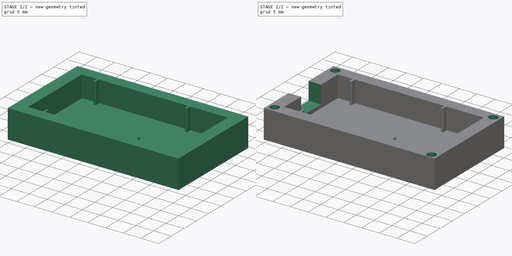
[diagram: build sequence overview — one tinted view per stage of 2, left to right]
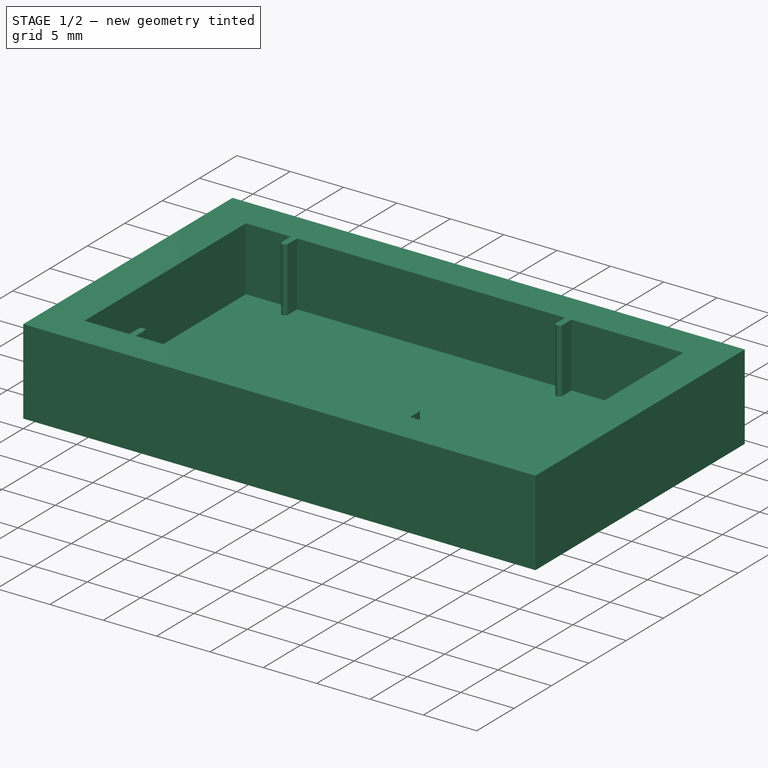
[diagram: stage 1 of 2 — iso view after this stage's code; geometry added in this stage tinted green]
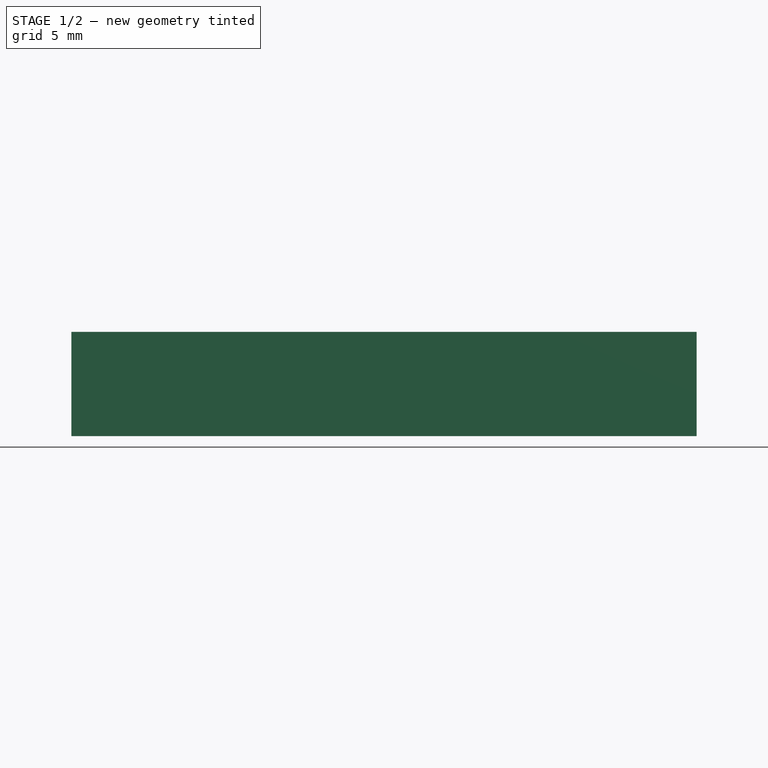
[diagram: stage 1 of 2 — front view after this stage's code; geometry added in this stage tinted green]
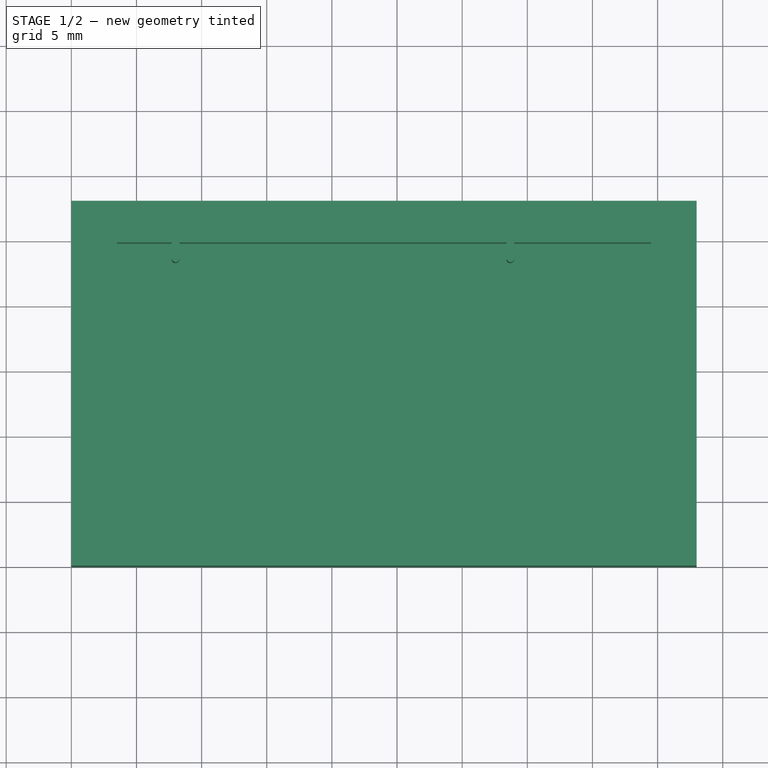
[diagram: stage 1 of 2 — top view after this stage's code; geometry added in this stage tinted green]
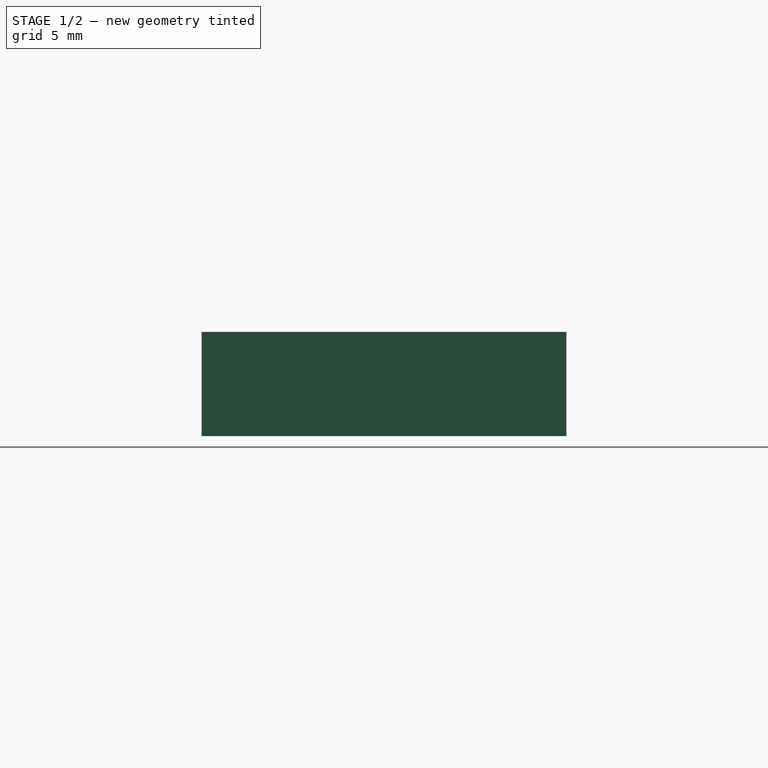
[diagram: stage 1 of 2 — right view after this stage's code; geometry added in this stage tinted green]
FCSTD DOCUMENT  (FreeCAD 0.16R6109 (Git))
Label: 2nd
License: All rights reserved
LicenseURL: http://en.wikipedia.org/wiki/All_rights_reserved
objects: Sketcher::SketchObject×5, PartDesign::Pocket×3, PartDesign::Pad×1
note: 13 computed .brp shape members not serialized (recipe doc carries the construction recipe); baked Part::Feature solids carry a one-line shape summary decoded from their .brp

FEATURE [Sketcher::SketchObject] Sketch
  sketch-geometry (4):
    g0: LineSegment StartX=0 StartY=0 StartZ=0 EndX=48 EndY=0 EndZ=0
    g1: LineSegment StartX=48 StartY=0 StartZ=0 EndX=48 EndY=28 EndZ=0
    g2: LineSegment StartX=48 StartY=28 StartZ=0 EndX=0 EndY=28 EndZ=0
    g3: LineSegment StartX=0 StartY=28 StartZ=0 EndX=0 EndY=0 EndZ=0
  constraints (11):
    c: Coincident(g0,g1)
    c: Coincident(g1,g2)
    c: Coincident(g2,g3)
    c: Coincident(g3,g0)
    c: Horizontal(g0)
    c: Horizontal(g2)
    c: Vertical(g1)
    c: Vertical(g3)
    c: DistanceX(g0) = 48
    c: Coincident(g0,g-1)
    c: DistanceY(g3) = -28
FEATURE [PartDesign::Pad] Pad
  Length = 8
  Length2 = 100
  Sketch = -> Sketch
  Type = 0
FEATURE [Sketcher::SketchObject] Sketch001
  Placement = pos=(0,0,8) rot=(0,0,1;0rad)
  Support = -> Pad [Face6]
  sketch-geometry (20):
    g0: LineSegment StartX=3.5 StartY=3.2 StartZ=0 EndX=7.7 EndY=3.2 EndZ=0
    g1: LineSegment StartX=7.7 StartY=3.2 StartZ=0 EndX=7.7 EndY=4.4 EndZ=0
    g2: ArcOfCircle CenterX=8 CenterY=4.4 CenterZ=0 NormalX=0 NormalY=0 NormalZ=1 Radius=0.3 StartAngle=0 EndAngle=3.14159
    g3: LineSegment StartX=8.3 StartY=4.4 StartZ=0 EndX=8.3 EndY=3.2 EndZ=0
    g4: LineSegment StartX=8.3 StartY=3.2 StartZ=0 EndX=33.4 EndY=3.2 EndZ=0
    g5: LineSegment StartX=33.4 StartY=3.2 StartZ=0 EndX=33.4 EndY=4.4 EndZ=0
    g6: ArcOfCircle CenterX=33.7 CenterY=4.4 CenterZ=0 NormalX=0 NormalY=0 NormalZ=1 Radius=0.3 StartAngle=0 EndAngle=3.14159
    g7: LineSegment StartX=34 StartY=4.4 StartZ=0 EndX=34 EndY=3.2 EndZ=0
    g8: LineSegment StartX=34 StartY=3.2 StartZ=0 EndX=44.5 EndY=3.2 EndZ=0
    g9: LineSegment StartX=44.5 StartY=3.2 StartZ=0 EndX=44.5 EndY=24.8 EndZ=0
    g10: LineSegment StartX=44.5 StartY=24.8 StartZ=0 EndX=34 EndY=24.8 EndZ=0
    g11: LineSegment StartX=34 StartY=24.8 StartZ=0 EndX=34 EndY=23.6 EndZ=0
    g12: ArcOfCircle CenterX=33.7 CenterY=23.6 CenterZ=0 NormalX=0 NormalY=0 NormalZ=1 Radius=0.3 StartAngle=3.14159 EndAngle=6.28319
    g13: LineSegment StartX=33.4 StartY=23.6 StartZ=0 EndX=33.4 EndY=24.8 EndZ=0
    g14: LineSegment StartX=33.4 StartY=24.8 StartZ=0 EndX=8.3 EndY=24.8 EndZ=0
    g15: LineSegment StartX=8.3 StartY=24.8 StartZ=0 EndX=8.3 EndY=23.6 EndZ=0
    g16: ArcOfCircle CenterX=8 CenterY=23.6 CenterZ=0 NormalX=0 NormalY=0 NormalZ=1 Radius=0.3 StartAngle=3.14159 EndAngle=6.28319
    g17: LineSegment StartX=7.7 StartY=23.6 StartZ=0 EndX=7.7 EndY=24.8 EndZ=0
    g18: LineSegment StartX=7.7 StartY=24.8 StartZ=0 EndX=3.5 EndY=24.8 EndZ=0
    g19: LineSegment StartX=3.5 StartY=24.8 StartZ=0 EndX=3.5 EndY=3.2 EndZ=0
  constraints (59):
    c: Horizontal(g0)
    c: Coincident(g0,g1)
    c: Vertical(g1)
    c: Tangent(g1,g2) = 1.5708
    c: Coincident(g2,g3)
    c: Vertical(g3)
    c: Coincident(g3,g4)
    c: Horizontal(g4)
    c: Coincident(g4,g5)
    c: Vertical(g5)
    c: Tangent(g5,g6) = 1.5708
    c: Coincident(g6,g7)
    c: Coincident(g7,g8)
    c: Horizontal(g8)
    c: Coincident(g8,g9)
    c: Vertical(g9)
    c: Coincident(g9,g10)
    c: Horizontal(g10)
    c: Coincident(g10,g11)
    c: Tangent(g11,g12) = 1.5708
    c: Tangent(g12,g13) = 1.5708
    c: Coincident(g13,g14)
    c: Horizontal(g14)
    c: Coincident(g14,g15)
    c: Vertical(g15)
    c: Tangent(g15,g16) = 1.5708
    c: Coincident(g16,g17)
    c: Coincident(g17,g18)
    c: Horizontal(g18)
    c: Coincident(g18,g19)
    c: Coincident(g19,g0)
    c: Vertical(g19)
    c: DistanceY(g1,g2) = 0
    c: DistanceY(g0,g3) = 0
    c: DistanceY(g4,g7) = 0
    c: DistanceY(g5,g6) = 0
    c: Radius(g2) = 0.3
    c: DistanceX(g2,g0) = -4.5
    c: DistanceY(g3) = -1.2
    c: Vertical(g17)
    c: Vertical(g13)
    c: Vertical(g11)
    c: Vertical(g7)
    c: DistanceX(g1,g16) = 0
    c: DistanceX(g2,g15) = 0
    c: DistanceY(g4,g5) = 1.2
    c: Radius(g6) = 0.3
    c: Radius(g12) = 0.3
    c: DistanceY(g11) = -1.2
    c: DistanceY(g18,g9) = 0
    c: DistanceY(g15,g16) = 0
    c: DistanceY(g17,g14) = 0
    c: DistanceX(g18,g9) = 41
    c: DistanceY(g9) = 21.6
    c: DistanceX(g12,g6) = 0
    c: DistanceY(g15) = -1.2
    c: DistanceX(g-1,g0) = 3.5
    c: DistanceY(g-1,g0) = 3.2
    c: DistanceX(g2,g5) = 25.1
FEATURE [PartDesign::Pocket] Pocket
  Length = 6
  Sketch = -> Sketch001
  Type = 0
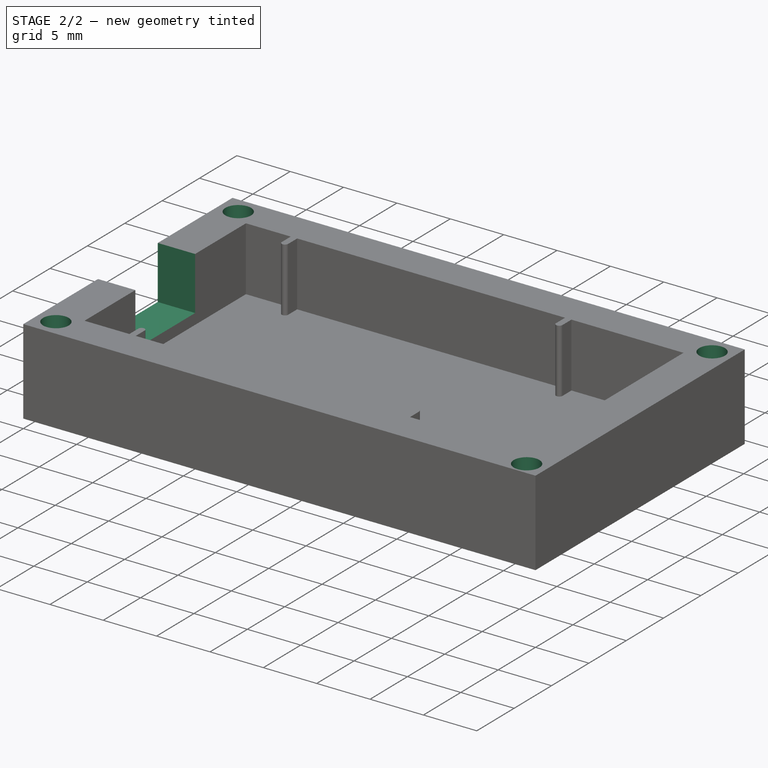
[diagram: stage 2 of 2 — iso view after this stage's code; geometry added in this stage tinted green]
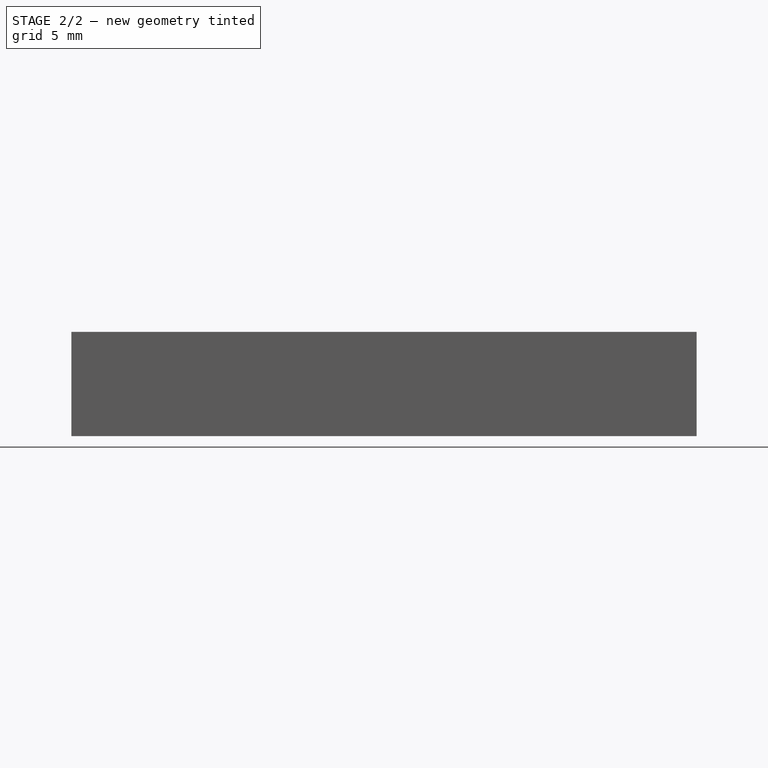
[diagram: stage 2 of 2 — front view after this stage's code; geometry added in this stage tinted green]
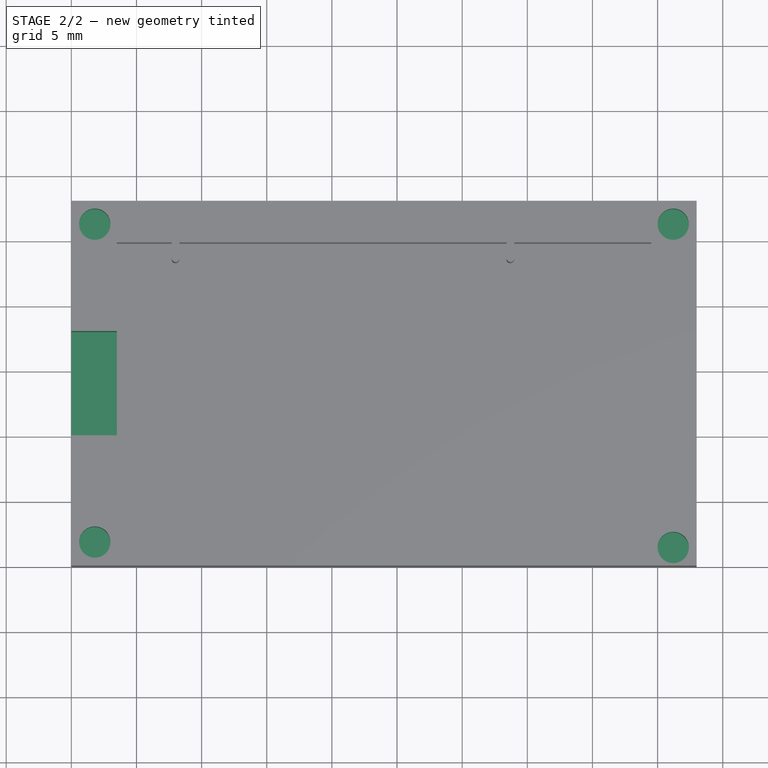
[diagram: stage 2 of 2 — top view after this stage's code; geometry added in this stage tinted green]
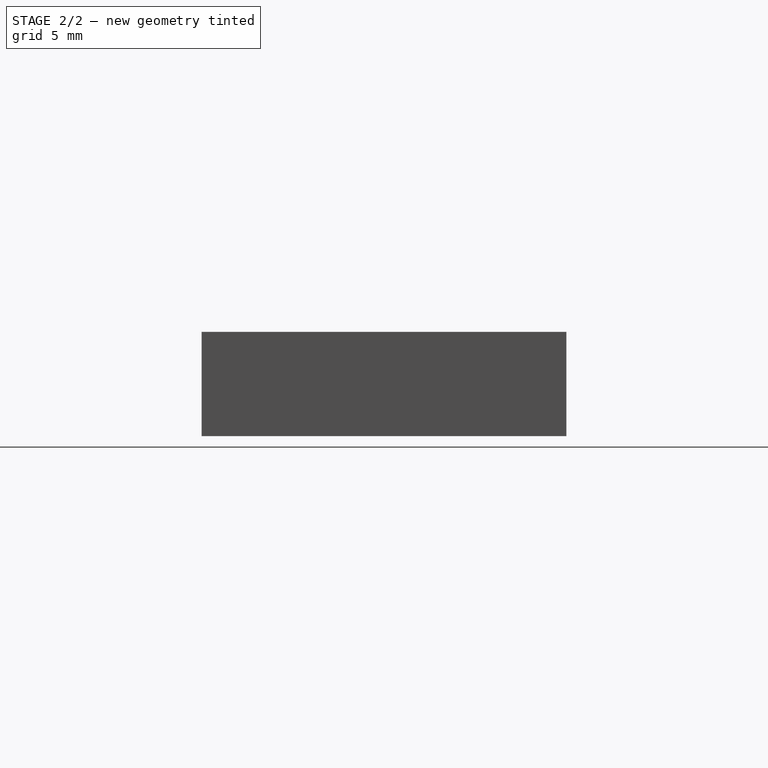
[diagram: stage 2 of 2 — right view after this stage's code; geometry added in this stage tinted green]
FEATURE [Sketcher::SketchObject] Sketch002
  Placement = pos=(0,0,8) rot=(0,0,1;0rad)
  Support = -> Pocket [Face5]
  sketch-geometry (4):
    g0: LineSegment StartX=0 StartY=18 StartZ=0 EndX=4 EndY=18 EndZ=0
    g1: LineSegment StartX=4 StartY=18 StartZ=0 EndX=4 EndY=10 EndZ=0
    g2: LineSegment StartX=4 StartY=10 StartZ=0 EndX=0 EndY=10 EndZ=0
    g3: LineSegment StartX=0 StartY=10 StartZ=0 EndX=0 EndY=18 EndZ=0
  constraints (12):
    c: Coincident(g0,g1)
    c: Coincident(g1,g2)
    c: Coincident(g2,g3)
    c: Coincident(g3,g0)
    c: Horizontal(g0)
    c: Horizontal(g2)
    c: Vertical(g1)
    c: Vertical(g3)
    c: DistanceX(g2) = 0
    c: DistanceY(g-1,g2) = 10
    c: DistanceY(g3) = 8
    c: DistanceX(g2) = -4
FEATURE [Sketcher::SketchObject] Sketch003
  Placement = pos=(0,0,8) rot=(0,0,1;0rad)
  sketch-geometry (4):
    g0: LineSegment StartX=48 StartY=8.5 StartZ=0 EndX=44 EndY=8.5 EndZ=0
    g1: LineSegment StartX=44 StartY=8.5 StartZ=0 EndX=44 EndY=19.5 EndZ=0
    g2: LineSegment StartX=44 StartY=19.5 StartZ=0 EndX=48 EndY=19.5 EndZ=0
    g3: LineSegment StartX=48 StartY=19.5 StartZ=0 EndX=48 EndY=8.5 EndZ=0
  constraints (12):
    c: Coincident(g0,g1)
    c: Coincident(g1,g2)
    c: Coincident(g2,g3)
    c: Coincident(g3,g0)
    c: Horizontal(g0)
    c: Horizontal(g2)
    c: Vertical(g1)
    c: Vertical(g3)
    c: DistanceX(g0) = 48
    c: DistanceX(g0) = -4
    c: DistanceY(g0) = 8.5
    c: DistanceY(g3) = -11
FEATURE [PartDesign::Pocket] Pocket001
  Length = 5
  Sketch = -> Sketch002
  Type = 0
FEATURE [Sketcher::SketchObject] Sketch004
  Placement = pos=(0,0,8) rot=(0,0,1;0rad)
  Support = -> Pocket001 [Face5]
  sketch-geometry (4):
    g0: Circle CenterX=1.8 CenterY=26.2 CenterZ=0 NormalX=0 NormalY=0 NormalZ=1 Radius=1.2
    g1: Circle CenterX=1.8 CenterY=1.8 CenterZ=0 NormalX=0 NormalY=0 NormalZ=1 Radius=1.2
    g2: Circle CenterX=46.2 CenterY=1.38293 CenterZ=0 NormalX=0 NormalY=0 NormalZ=1 Radius=1.2
    g3: Circle CenterX=46.2 CenterY=26.2 CenterZ=0 NormalX=0 NormalY=0 NormalZ=1 Radius=1.2
  constraints (11):
    c: Equal(g0,g3)
    c: Equal(g3,g2)
    c: Equal(g2,g1)
    c: Radius(g0) = 1.2
    c: DistanceX(g-1,g1) = 1.8
    c: DistanceX(g1,g0) = 0
    c: DistanceY(g0,g3) = 0
    c: DistanceX(g3,g2) = 0
    c: DistanceX(g2,g1) = -44.4
    c: DistanceY(g1) = 1.8
    c: DistanceY(g-1,g0) = 26.2
FEATURE [PartDesign::Pocket] Pocket002
  Length = 3
  Sketch = -> Sketch004
  Type = 0
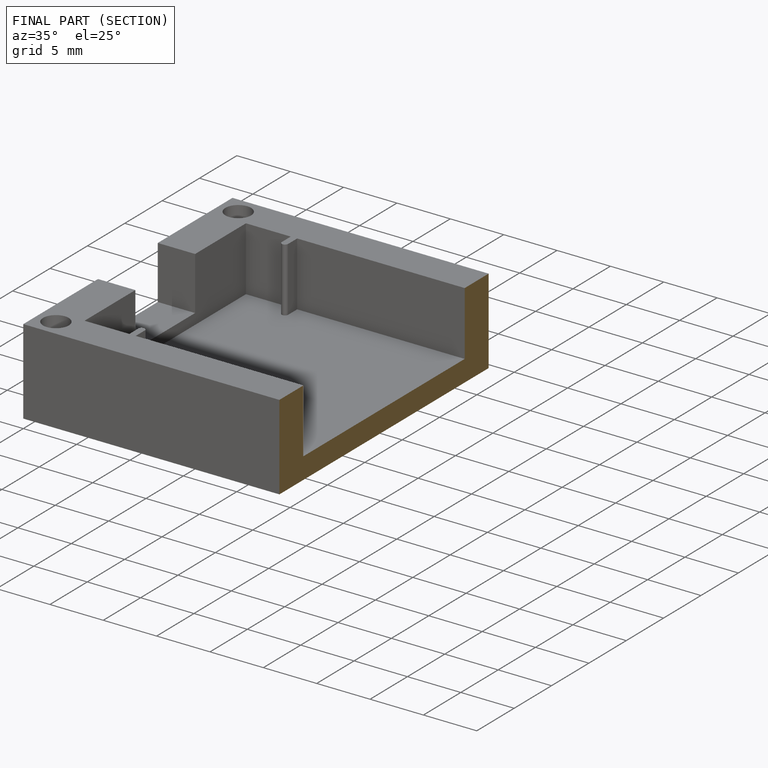
[diagram: finished part — half-section view (interior)]
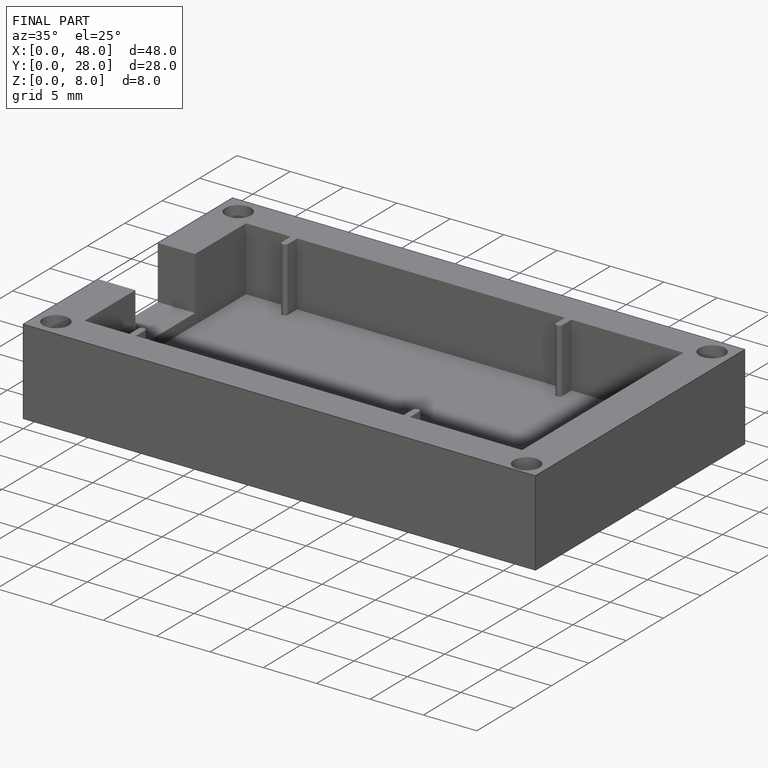
[diagram: finished part — iso view with bounding-box wireframe]
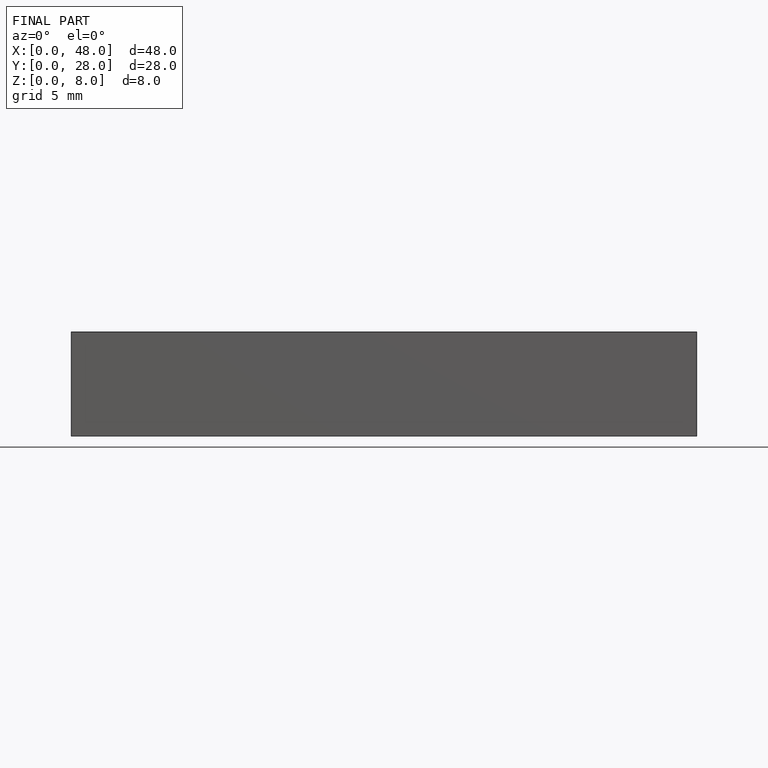
[diagram: finished part — front view with bounding-box wireframe]
